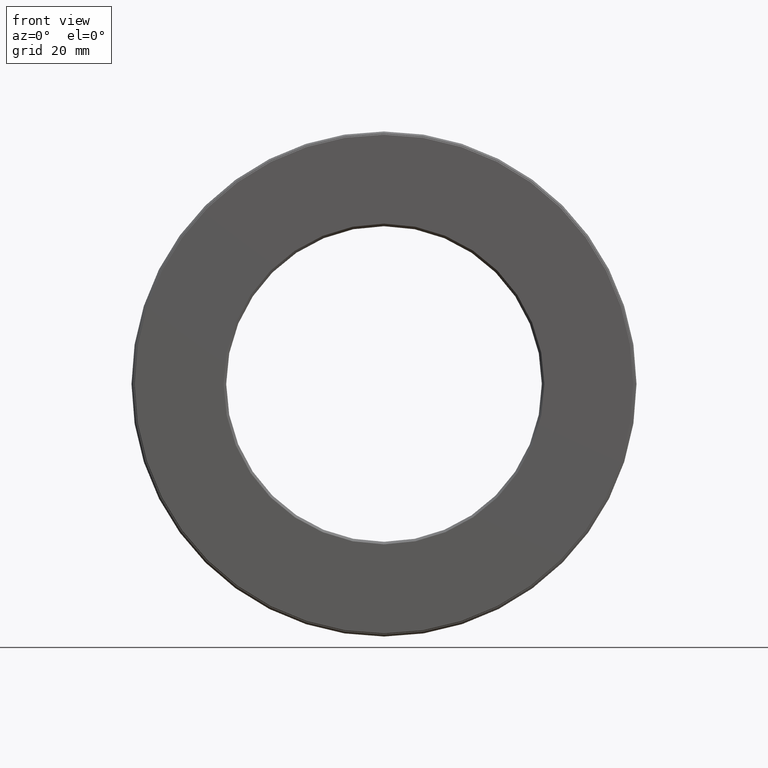
[diagram: clean part render]
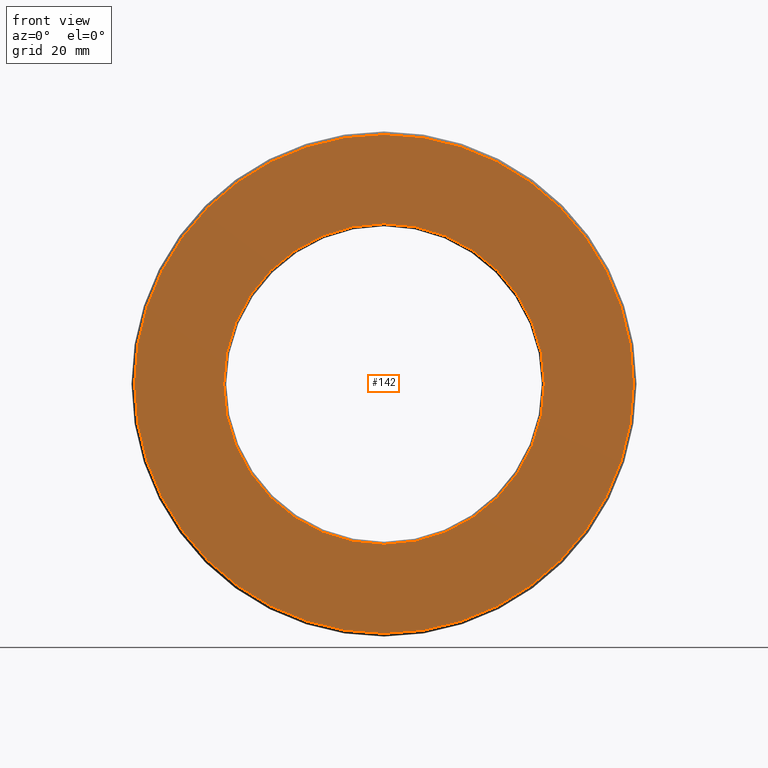
[diagram: same view with one face highlighted and labeled with its STEP entity id]
A machine part, front view. The second image highlights one B-rep face of the part: STEP entity #142.
In plain terms, the highlighted planar face has unit normal (-0, 1, 0).
Its self-contained STEP definition (entity closure, byte-faithful):
#20 = CARTESIAN_POINT ( 'NONE',  ( 4.083987789886093600E-034, -1.189847856615489700E-016, 0.0000000000000000000 ) ) ;
#64 = CARTESIAN_POINT ( 'NONE',  ( 0.0000000000000000000, -1.365923996832131600E-016, 0.0000000000000000000 ) ) ;
#71 = FACE_OUTER_BOUND ( 'NONE', #381, .T. ) ;
#96 = AXIS2_PLACEMENT_3D ( 'NONE', #64, #242, #568 ) ;
#142 = ADVANCED_FACE ( 'NONE', ( #71, #405 ), #525, .F. ) ;
#164 = CIRCLE ( 'NONE', #372, 1.974999999999999900 ) ;
#198 = ORIENTED_EDGE ( 'NONE', *, *, #282, .F. ) ;
#242 = DIRECTION ( 'NONE',  ( -0.0000000000000000000, 1.000000000000000000, -0.0000000000000000000 ) ) ;
#282 = EDGE_CURVE ( 'NONE', #546, #546, #164, .T. ) ;
#291 = CARTESIAN_POINT ( 'NONE',  ( 0.0000000000000000000, -1.365923996832131600E-016, 1.270000000000000000 ) ) ;
#305 = CIRCLE ( 'NONE', #96, 1.270000000000000000 ) ;
#372 = AXIS2_PLACEMENT_3D ( 'NONE', #536, #535, #593 ) ;
#381 = EDGE_LOOP ( 'NONE', ( #198 ) ) ;
#405 = FACE_BOUND ( 'NONE', #445, .T. ) ;
#445 = EDGE_LOOP ( 'NONE', ( #482 ) ) ;
#465 = EDGE_CURVE ( 'NONE', #553, #553, #305, .T. ) ;
#466 = DIRECTION ( 'NONE',  ( -0.0000000000000000000, 1.000000000000000000, 0.0000000000000000000 ) ) ;
#482 = ORIENTED_EDGE ( 'NONE', *, *, #465, .T. ) ;
#497 = AXIS2_PLACEMENT_3D ( 'NONE', #20, #466, #530 ) ;
#510 = CARTESIAN_POINT ( 'NONE',  ( 0.0000000000000000000, -1.013771716398847600E-016, 1.974999999999999900 ) ) ;
#525 = PLANE ( 'NONE',  #497 ) ;
#530 = DIRECTION ( 'NONE',  ( 0.0000000000000000000, 0.0000000000000000000, 1.000000000000000000 ) ) ;
#535 = DIRECTION ( 'NONE',  ( -0.0000000000000000000, 1.000000000000000000, -0.0000000000000000000 ) ) ;
#536 = CARTESIAN_POINT ( 'NONE',  ( 0.0000000000000000000, -1.013771716398847600E-016, 0.0000000000000000000 ) ) ;
#546 = VERTEX_POINT ( 'NONE', #510 ) ;
#553 = VERTEX_POINT ( 'NONE', #291 ) ;
#568 = DIRECTION ( 'NONE',  ( 0.0000000000000000000, 0.0000000000000000000, 1.000000000000000000 ) ) ;
#593 = DIRECTION ( 'NONE',  ( 0.0000000000000000000, 0.0000000000000000000, 1.000000000000000000 ) ) ;